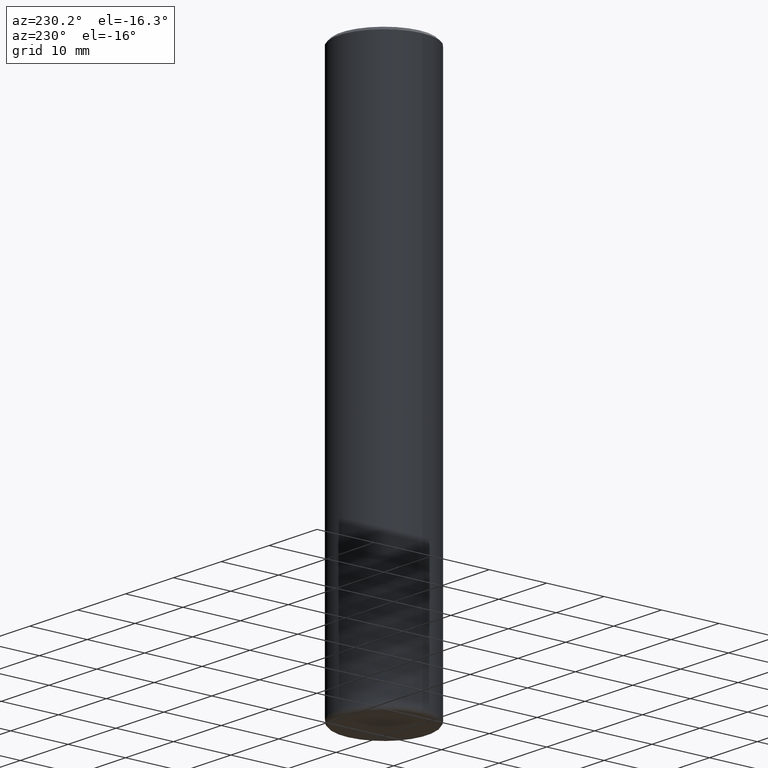
[diagram: clean part render]
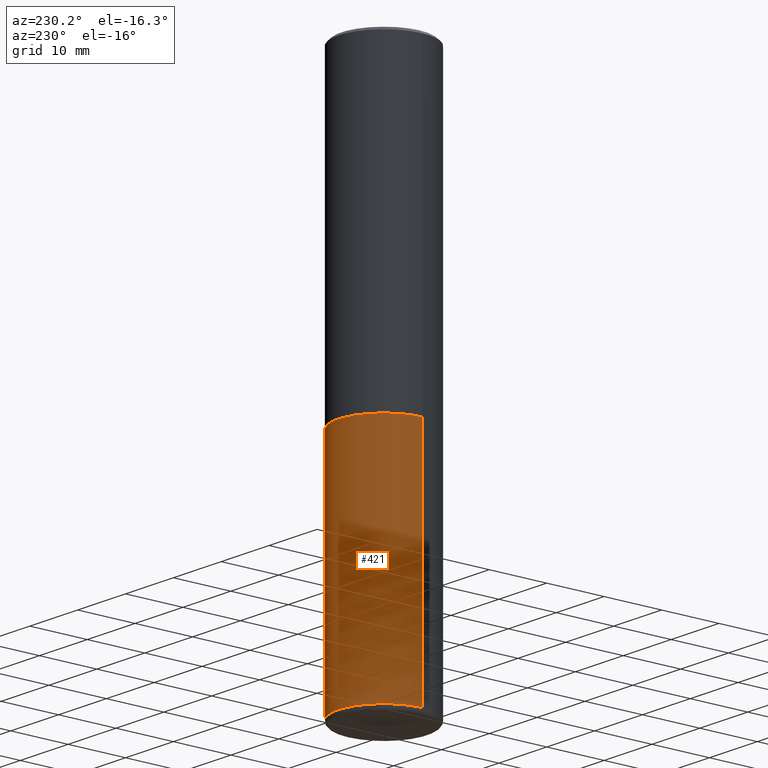
[diagram: same view with one face highlighted and labeled with its STEP entity id]
A machine part, auxiliary view. The second image highlights one B-rep face of the part: STEP entity #421.
In plain terms, the highlighted cylindrical surface (partial cylindrical patch) has radius 7.9375 mm, axis along (-0, 0, 1).
Its self-contained STEP definition (entity closure, byte-faithful):
#1 = EDGE_CURVE ( 'NONE', #412, #258, #116, .T. ) ;
#38 = CARTESIAN_POINT ( 'NONE',  ( 0.3124999999999992784, -1.517049040562078230E-14, -3.720001142308075437 ) ) ;
#40 = EDGE_CURVE ( 'NONE', #262, #258, #271, .T. ) ;
#42 = AXIS2_PLACEMENT_3D ( 'NONE', #52, #431, #240 ) ;
#52 = CARTESIAN_POINT ( 'NONE',  ( 9.097146752487473464E-29, -1.298831456884382869E-14, -3.720001142308075437 ) ) ;
#69 = CYLINDRICAL_SURFACE ( 'NONE', #161, 0.3124999999999994449 ) ;
#72 = VERTEX_POINT ( 'NONE', #38 ) ;
#76 = CARTESIAN_POINT ( 'NONE',  ( -0.3124999999999996114, -7.983410157692447018E-15, -2.125000000000000000 ) ) ;
#87 = CARTESIAN_POINT ( 'NONE',  ( -0.3124999999999994449, 2.220446049250309137E-15, -1.537167215704655429E-29 ) ) ;
#98 = EDGE_LOOP ( 'NONE', ( #290, #260, #196, #449 ) ) ;
#116 = CIRCLE ( 'NONE', #468, 0.3124999999999996114 ) ;
#120 = VECTOR ( 'NONE', #375, 39.37007874015748143 ) ;
#144 = CARTESIAN_POINT ( 'NONE',  ( 0.3124999999999994449, -2.182175836776954797E-15, 1.523805242436227273E-29 ) ) ;
#154 = EDGE_CURVE ( 'NONE', #72, #412, #444, .T. ) ;
#161 = AXIS2_PLACEMENT_3D ( 'NONE', #215, #331, #410 ) ;
#184 = EDGE_CURVE ( 'NONE', #72, #262, #267, .T. ) ;
#196 = ORIENTED_EDGE ( 'NONE', *, *, #1, .F. ) ;
#202 = CARTESIAN_POINT ( 'NONE',  ( 5.196621213143415268E-29, -7.419397845041685201E-15, -2.125000000000000000 ) ) ;
#203 = FACE_OUTER_BOUND ( 'NONE', #98, .T. ) ;
#215 = CARTESIAN_POINT ( 'NONE',  ( 0.000000000000000000, 0.000000000000000000, 0.000000000000000000 ) ) ;
#240 = DIRECTION ( 'NONE',  ( 1.000000000000000000, -6.982962677686266711E-15, 0.000000000000000000 ) ) ;
#258 = VERTEX_POINT ( 'NONE', #76 ) ;
#260 = ORIENTED_EDGE ( 'NONE', *, *, #40, .T. ) ;
#262 = VERTEX_POINT ( 'NONE', #486 ) ;
#267 = CIRCLE ( 'NONE', #42, 0.3124999999999992784 ) ;
#271 = LINE ( 'NONE', #87, #120 ) ;
#290 = ORIENTED_EDGE ( 'NONE', *, *, #184, .T. ) ;
#331 = DIRECTION ( 'NONE',  ( -2.445468806185136597E-29, 3.491481338843145583E-15, 1.000000000000000000 ) ) ;
#370 = DIRECTION ( 'NONE',  ( -2.445468806185136877E-29, 3.491481338843145188E-15, 1.000000000000000000 ) ) ;
#375 = DIRECTION ( 'NONE',  ( -2.445468806185136877E-29, 3.491481338843145188E-15, 1.000000000000000000 ) ) ;
#410 = DIRECTION ( 'NONE',  ( 1.000000000000000000, -6.982962677686267499E-15, 4.876176775795935793E-29 ) ) ;
#412 = VERTEX_POINT ( 'NONE', #491 ) ;
#421 = ADVANCED_FACE ( 'NONE', ( #203 ), #69, .T. ) ;
#431 = DIRECTION ( 'NONE',  ( -2.445468806185136597E-29, 3.491481338843145583E-15, 1.000000000000000000 ) ) ;
#438 = DIRECTION ( 'NONE',  ( -2.445468806185136597E-29, 3.491481338843145583E-15, 1.000000000000000000 ) ) ;
#444 = LINE ( 'NONE', #144, #459 ) ;
#449 = ORIENTED_EDGE ( 'NONE', *, *, #154, .F. ) ;
#459 = VECTOR ( 'NONE', #370, 39.37007874015748143 ) ;
#468 = AXIS2_PLACEMENT_3D ( 'NONE', #202, #438, #470 ) ;
#470 = DIRECTION ( 'NONE',  ( 1.000000000000000000, -6.982962677686269077E-15, 0.000000000000000000 ) ) ;
#486 = CARTESIAN_POINT ( 'NONE',  ( -0.3124999999999992784, -7.983410157692447018E-15, -3.720001142308075437 ) ) ;
#491 = CARTESIAN_POINT ( 'NONE',  ( 0.3124999999999996114, -9.601573681818640393E-15, -2.125000000000000000 ) ) ;